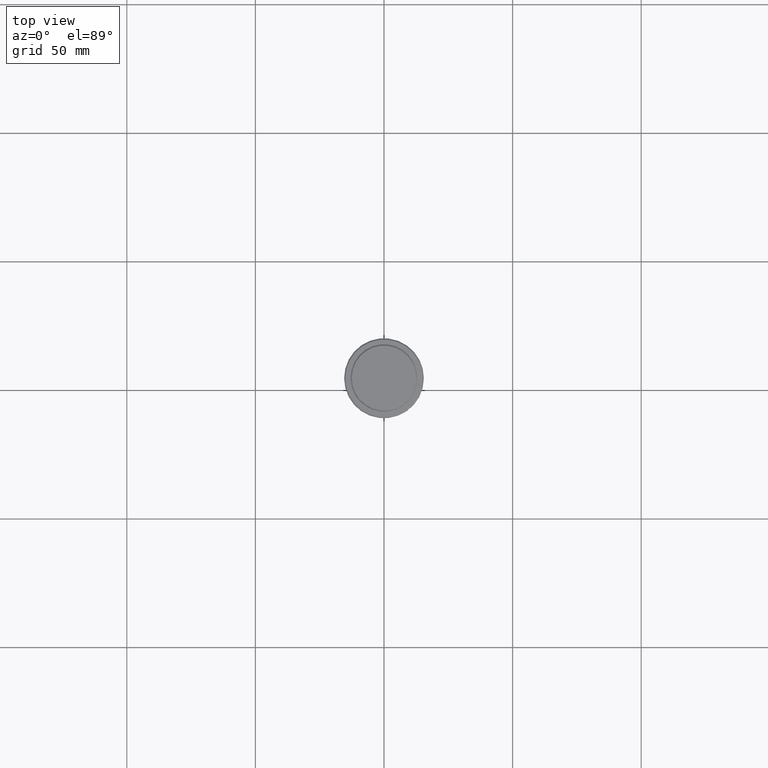
[diagram: clean part render]
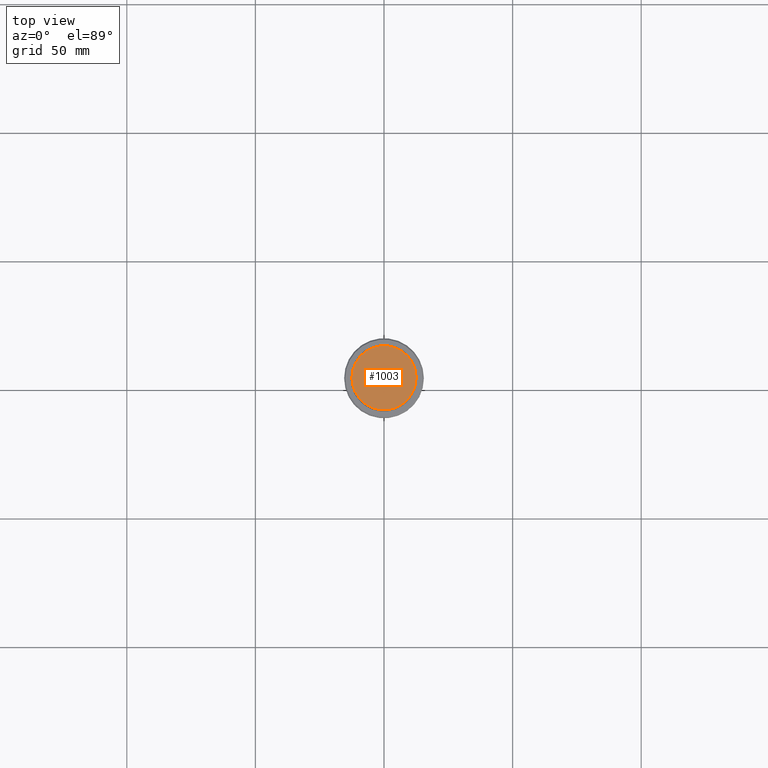
[diagram: same view with one face highlighted and labeled with its STEP entity id]
A machine part, top view. The second image highlights one B-rep face of the part: STEP entity #1003.
In plain terms, the highlighted planar face has unit normal (0, -0, 1).
Its self-contained STEP definition (entity closure, byte-faithful):
#17 = EDGE_LOOP ( 'NONE', ( #278, #481 ) ) ;
#26 = DIRECTION ( 'NONE',  ( 1.000000000000000000, 0.000000000000000000, 0.000000000000000000 ) ) ;
#116 = PLANE ( 'NONE',  #676 ) ;
#278 = ORIENTED_EDGE ( 'NONE', *, *, #683, .T. ) ;
#316 = DIRECTION ( 'NONE',  ( 1.000000000000000000, 0.000000000000000000, 0.000000000000000000 ) ) ;
#421 = CARTESIAN_POINT ( 'NONE',  ( -12.50000000000001243, 0.000000000000000000, 0.000000000000000000 ) ) ;
#434 = DIRECTION ( 'NONE',  ( -0.000000000000000000, -0.000000000000000000, 1.000000000000000000 ) ) ;
#481 = ORIENTED_EDGE ( 'NONE', *, *, #1226, .T. ) ;
#482 = FACE_OUTER_BOUND ( 'NONE', #17, .T. ) ;
#531 = DIRECTION ( 'NONE',  ( 1.000000000000000000, 0.000000000000000000, 0.000000000000000000 ) ) ;
#538 = CARTESIAN_POINT ( 'NONE',  ( 0.000000000000000000, 0.000000000000000000, 0.000000000000000000 ) ) ;
#639 = VERTEX_POINT ( 'NONE', #421 ) ;
#671 = DIRECTION ( 'NONE',  ( -0.000000000000000000, -0.000000000000000000, 1.000000000000000000 ) ) ;
#676 = AXIS2_PLACEMENT_3D ( 'NONE', #1021, #695, #26 ) ;
#683 = EDGE_CURVE ( 'NONE', #639, #1141, #1305, .T. ) ;
#695 = DIRECTION ( 'NONE',  ( 0.000000000000000000, -0.000000000000000000, 1.000000000000000000 ) ) ;
#850 = CARTESIAN_POINT ( 'NONE',  ( 12.50000000000001243, 1.561424668912876097E-15, 0.000000000000000000 ) ) ;
#972 = CIRCLE ( 'NONE', #1198, 12.50000000000001243 ) ;
#984 = CARTESIAN_POINT ( 'NONE',  ( 0.000000000000000000, 0.000000000000000000, 0.000000000000000000 ) ) ;
#1003 = ADVANCED_FACE ( 'NONE', ( #482 ), #116, .T. ) ;
#1021 = CARTESIAN_POINT ( 'NONE',  ( 0.000000000000000000, 0.000000000000000000, 0.000000000000000000 ) ) ;
#1141 = VERTEX_POINT ( 'NONE', #850 ) ;
#1198 = AXIS2_PLACEMENT_3D ( 'NONE', #984, #671, #316 ) ;
#1226 = EDGE_CURVE ( 'NONE', #1141, #639, #972, .T. ) ;
#1305 = CIRCLE ( 'NONE', #1398, 12.50000000000001243 ) ;
#1398 = AXIS2_PLACEMENT_3D ( 'NONE', #538, #434, #531 ) ;